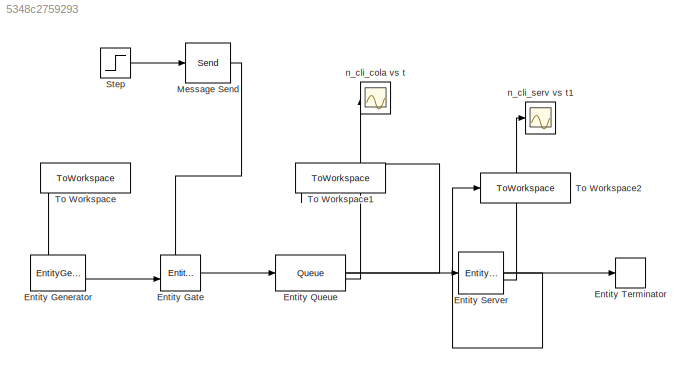
MODEL slx_5348c2759293
KIND model
CONFIG AbsTol = auto
CONFIG EnableMultiTasking = off
CONFIG FixedStep = auto
CONFIG MaxStep = auto
CONFIG MinStep = auto
CONFIG RelTol = 1e-3
CONFIG SampleTimeConstraint = Unconstrained
CONFIG SolverName = VariableStepAuto
CONFIG StartTime = 0.0
CONFIG StopTime = 1000
BLOCK [EntityGate] Entity Gate
  InputPortMap = u0,u1
  InputPortMessageModes = m,m
  OutputPortMap = o0
  OutputPortMessageModes = m
BLOCK [EntityGenerator] Entity Generator
  EntityType = Structured
  EntityTypeName = Entity
  IntergenerationTimeAction = value = 1\nvalue = rand()\nmu = 2\ndt = -mu*log(1-value)
  NumberEntitiesDeparted = on
  OutputPortMap = o0,o3
  OutputPortMessageModes = n,m
  TimeSource = MATLAB action
BLOCK [Queue] Entity Queue
  Capacity = inf
  InputPortMap = u0
  InputPortMessageModes = m
  NumberEntitiesDeparted = on
  NumberEntitiesInBlock = on
  OutputPortMap = o0,o1,o5
  OutputPortMessageModes = n,n,m
BLOCK [EntityServer] Entity Server
  Capacity = 1
  InputPortMap = u2
  InputPortMessageModes = m
  NumberEntitiesDeparted = on
  NumberEntitiesInBlock = on
  OutputPortMap = o0,o1,o9
  OutputPortMessageModes = n,n,m
  ServiceTimeAction = value = 1\nvalue = rand()\nmu = 3\ndt = -mu*log(1-value)
  ServiceTimeSource = MATLAB action
BLOCK [EntityTerminator] Entity Terminator
  InputPortMap = u0
  InputPortMessageModes = m
BLOCK [Send] Message Send
  InputPortMap = u1
  OutputPortMessageModes = m
BLOCK [Step] Step
  After = 0
  Before = 1
  SampleTime = 0
  Time = 180
BLOCK [ToWorkspace] To Workspace
  FixptAsFi = on
  MaxDataPoints = inf
  SampleTime = -1
  SaveFormat = Timeseries
  VariableName = LL
BLOCK [ToWorkspace] To Workspace1
  FixptAsFi = on
  MaxDataPoints = inf
  SampleTime = -1
  SaveFormat = Timeseries
  VariableName = t_pasa_serv
BLOCK [ToWorkspace] To Workspace2
  FixptAsFi = on
  MaxDataPoints = inf
  SampleTime = -1
  SaveFormat = Timeseries
  VariableName = S
BLOCK [Scope] n_cli_cola vs t
  Floating = off
  NumInputPorts = 1
  ScopeSpecificationString = Simulink.scopes.TimeScopeBlockCfg('CurrentConfiguration', extmgr.ConfigurationSet(extmgr.Configuration('Core','General UI',true),extmgr.Configuration('Core','Source UI',true),extmgr.Configuration('Sources','WiredSimulink',true,'DataLoggingVariableName','ScopeData1'),extmgr.Configuration('Visuals','Time Domain',true,'SerializedDisplays',{struct('MinYLimReal','-0.04795','MaxYLimReal','7.25127','YLab...<+1472ch>
BLOCK [Scope] n_cli_serv vs t1
  Floating = off
  NumInputPorts = 1
  ScopeSpecificationString = Simulink.scopes.TimeScopeBlockCfg('CurrentConfiguration', extmgr.ConfigurationSet(extmgr.Configuration('Core','General UI',true),extmgr.Configuration('Core','Source UI',true),extmgr.Configuration('Sources','WiredSimulink',true,'DataLoggingVariableName','ScopeData2'),extmgr.Configuration('Visuals','Time Domain',true,'SerializedDisplays',{struct('MinYLimReal','0.09196','MaxYLimReal','0.92529','YLabe...<+1471ch>
LINE Entity Gate:1 -> Entity Queue:1
LINE Entity Generator:1 -> To Workspace:1
LINE Entity Generator:2 -> Entity Gate:2
LINE Entity Queue:1 -> To Workspace1:1
LINE Entity Queue:2 -> n_cli_cola vs t:1
LINE Entity Queue:3 -> Entity Server:1
LINE Entity Server:1 -> To Workspace2:1
LINE Entity Server:2 -> n_cli_serv vs t1:1
LINE Entity Server:3 -> Entity Terminator:1
LINE Message Send:1 -> Entity Gate:1
LINE Step:1 -> Message Send:1
